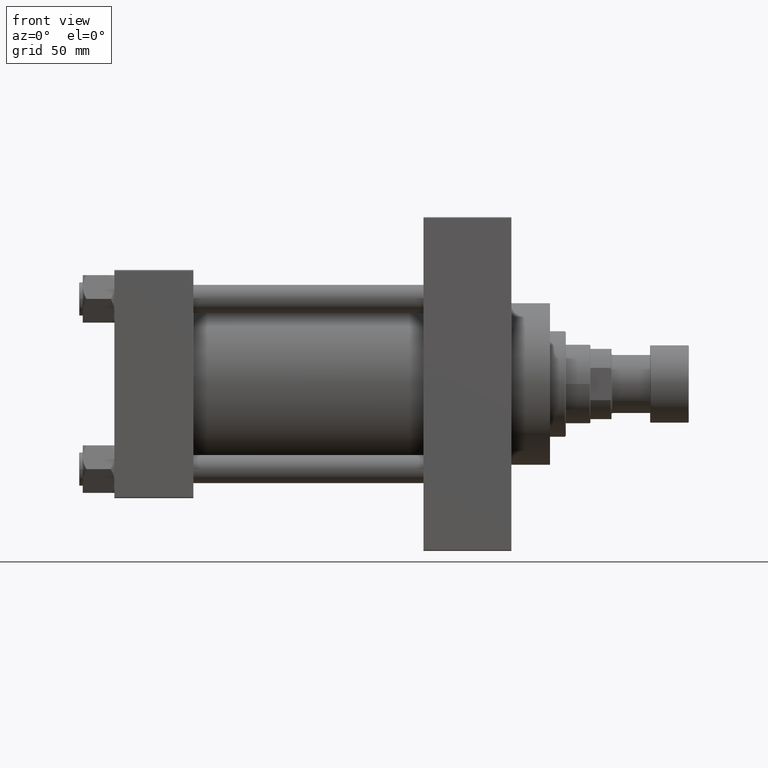
[diagram: clean part render]
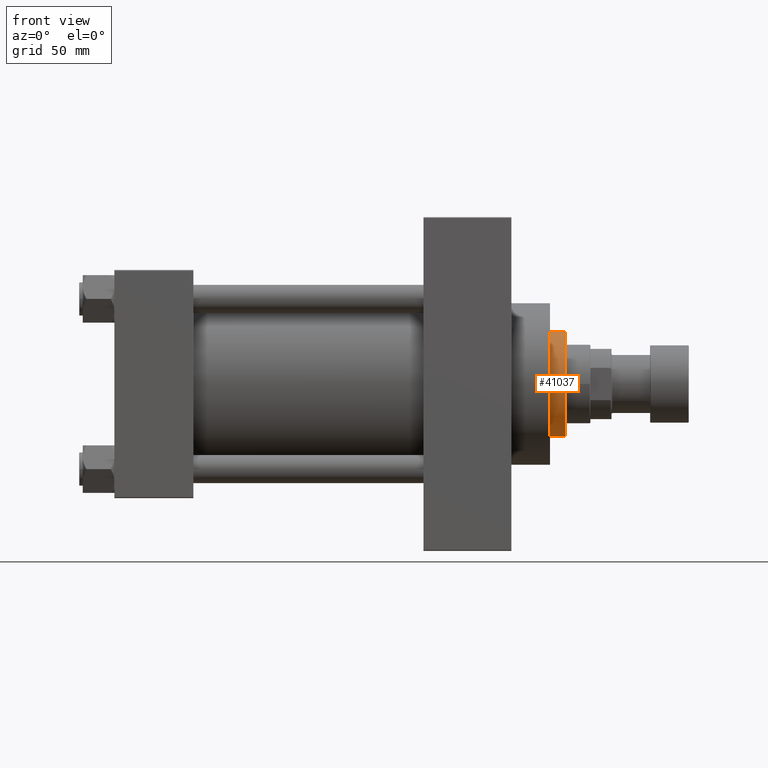
[diagram: same view with one face highlighted and labeled with its STEP entity id]
A machine part, front view. The second image highlights one B-rep face of the part: STEP entity #41037.
In plain terms, the highlighted cylindrical surface (partial cylindrical patch) has radius 30 mm, axis along (-1, 0, 0).
Its self-contained STEP definition (entity closure, byte-faithful):
#1285 = EDGE_CURVE ( 'NONE', #45705, #3106, #43311, .T. ) ;
#2436 = DIRECTION ( 'NONE',  ( -0.000000000000000000, -0.000000000000000000, -1.000000000000000000 ) ) ;
#2511 = VERTEX_POINT ( 'NONE', #16864 ) ;
#3106 = VERTEX_POINT ( 'NONE', #12302 ) ;
#3866 = AXIS2_PLACEMENT_3D ( 'NONE', #26201, #41102, #14961 ) ;
#5660 = CARTESIAN_POINT ( 'NONE',  ( 0.000000000000000000, 0.000000000000000000, 43.25999999999999801 ) ) ;
#7697 = EDGE_CURVE ( 'NONE', #3106, #32736, #11898, .T. ) ;
#9341 = CARTESIAN_POINT ( 'NONE',  ( 30.00000000000000000, 3.673940397442059178E-15, 52.25999999999999801 ) ) ;
#9843 = DIRECTION ( 'NONE',  ( -0.000000000000000000, -0.000000000000000000, -1.000000000000000000 ) ) ;
#11898 = CIRCLE ( 'NONE', #23600, 30.00000000000000000 ) ;
#12302 = CARTESIAN_POINT ( 'NONE',  ( 30.00000000000000000, 3.673940397442059178E-15, 43.25999999999999801 ) ) ;
#12780 = EDGE_CURVE ( 'NONE', #2511, #45705, #41715, .T. ) ;
#14961 = DIRECTION ( 'NONE',  ( -1.000000000000000000, 0.000000000000000000, 0.000000000000000000 ) ) ;
#16771 = AXIS2_PLACEMENT_3D ( 'NONE', #24904, #32249, #28334 ) ;
#16864 = CARTESIAN_POINT ( 'NONE',  ( -30.00000000000000000, 0.000000000000000000, 51.75999999999999091 ) ) ;
#16894 = DIRECTION ( 'NONE',  ( 1.000000000000000000, 0.000000000000000000, 0.000000000000000000 ) ) ;
#17256 = VECTOR ( 'NONE', #2436, 1000.000000000000000 ) ;
#17948 = EDGE_LOOP ( 'NONE', ( #21007, #22293, #40953, #25258 ) ) ;
#18670 = CARTESIAN_POINT ( 'NONE',  ( -30.00000000000000000, 0.000000000000000000, 43.25999999999999801 ) ) ;
#18738 = EDGE_CURVE ( 'NONE', #2511, #32736, #25374, .T. ) ;
#21007 = ORIENTED_EDGE ( 'NONE', *, *, #12780, .T. ) ;
#22293 = ORIENTED_EDGE ( 'NONE', *, *, #1285, .T. ) ;
#23600 = AXIS2_PLACEMENT_3D ( 'NONE', #5660, #32046, #16894 ) ;
#24888 = CARTESIAN_POINT ( 'NONE',  ( -30.00000000000000000, 0.000000000000000000, 52.25999999999999801 ) ) ;
#24904 = CARTESIAN_POINT ( 'NONE',  ( 0.000000000000000000, 0.000000000000000000, 51.75999999999999091 ) ) ;
#25258 = ORIENTED_EDGE ( 'NONE', *, *, #18738, .F. ) ;
#25374 = LINE ( 'NONE', #24888, #17256 ) ;
#26201 = CARTESIAN_POINT ( 'NONE',  ( 0.000000000000000000, 0.000000000000000000, 52.25999999999999801 ) ) ;
#28334 = DIRECTION ( 'NONE',  ( 1.000000000000000000, 0.000000000000000000, 0.000000000000000000 ) ) ;
#29869 = CYLINDRICAL_SURFACE ( 'NONE', #3866, 30.00000000000000000 ) ;
#32046 = DIRECTION ( 'NONE',  ( 0.000000000000000000, 0.000000000000000000, 1.000000000000000000 ) ) ;
#32249 = DIRECTION ( 'NONE',  ( 0.000000000000000000, 0.000000000000000000, -1.000000000000000000 ) ) ;
#32736 = VERTEX_POINT ( 'NONE', #18670 ) ;
#40588 = CARTESIAN_POINT ( 'NONE',  ( 30.00000000000000000, 3.673940397442059178E-15, 51.75999999999999091 ) ) ;
#40953 = ORIENTED_EDGE ( 'NONE', *, *, #7697, .T. ) ;
#41037 = ADVANCED_FACE ( 'NONE', ( #41342 ), #29869, .T. ) ;
#41102 = DIRECTION ( 'NONE',  ( -0.000000000000000000, -0.000000000000000000, -1.000000000000000000 ) ) ;
#41342 = FACE_OUTER_BOUND ( 'NONE', #17948, .T. ) ;
#41715 = CIRCLE ( 'NONE', #16771, 30.00000000000000000 ) ;
#43311 = LINE ( 'NONE', #9341, #43693 ) ;
#43693 = VECTOR ( 'NONE', #9843, 1000.000000000000000 ) ;
#45705 = VERTEX_POINT ( 'NONE', #40588 ) ;